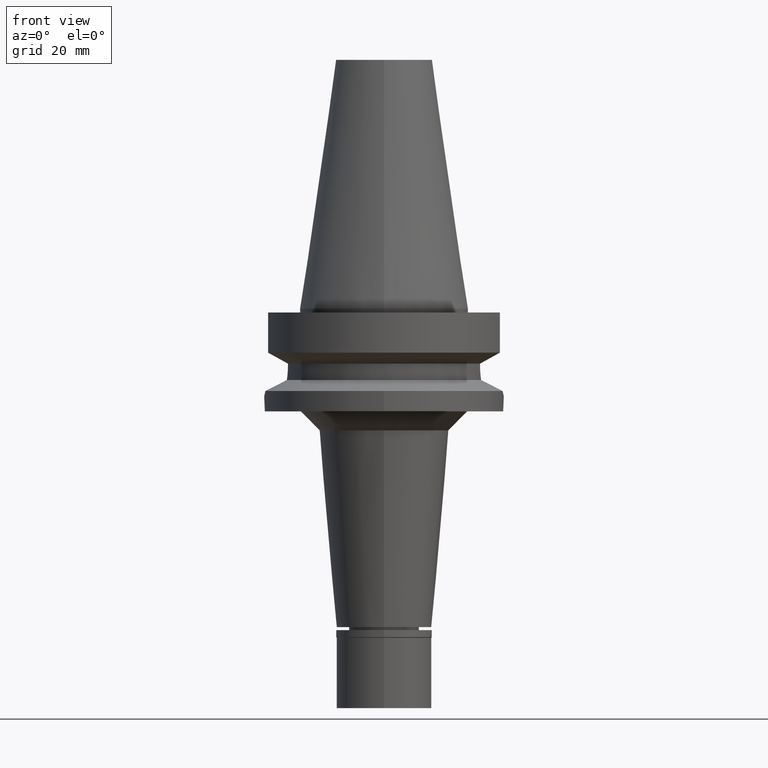
[diagram: clean part render]
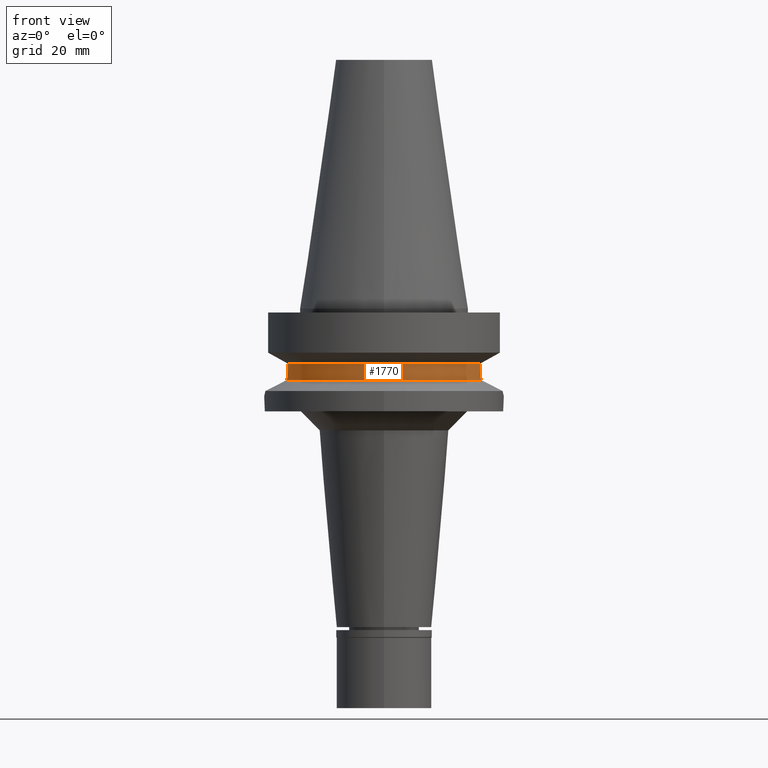
[diagram: same view with one face highlighted and labeled with its STEP entity id]
A machine part, front view. The second image highlights one B-rep face of the part: STEP entity #1770.
In plain terms, the highlighted cylindrical surface (partial cylindrical patch) has radius 26.5 mm, axis along (0, 0, -1).
Its self-contained STEP definition (entity closure, byte-faithful):
#80 = VECTOR ( 'NONE', #1501, 1000.000000000000114 ) ;
#113 = CARTESIAN_POINT ( 'NONE',  ( 25.31202572170774800, -7.845729406580115750, -16.75279821057748464 ) ) ;
#128 = AXIS2_PLACEMENT_3D ( 'NONE', #1649, #158, #3082 ) ;
#158 = DIRECTION ( 'NONE',  ( 0.0000000000000000000, 0.0000000000000000000, -1.000000000000000000 ) ) ;
#196 = CARTESIAN_POINT ( 'NONE',  ( -25.32419709970849908, -7.806318959900162113, -16.91578803901743555 ) ) ;
#235 = DIRECTION ( 'NONE',  ( 0.0000000000000000000, 0.0000000000000000000, -1.000000000000000000 ) ) ;
#243 = B_SPLINE_CURVE_WITH_KNOTS ( 'NONE', 3,
 ( #479, #449, #1691, #2368, #2177, #2392, #2904, #905, #2416, #2608, #196, #672, #2890, #411 ),
 .UNSPECIFIED., .F., .F.,
 ( 4, 2, 2, 1, 1, 2, 2, 4 ),
 ( 0.0000000000000000000, 0.2499999999999918954, 0.3749999999999866218, 0.4374999999999840128, 0.4687499999999841238, 0.4843749999999829581, 0.4999999999999817923, 1.000000000000000000 ),
 .UNSPECIFIED. ) ;
#292 = ORIENTED_EDGE ( 'NONE', *, *, #2343, .F. ) ;
#299 = EDGE_CURVE ( 'NONE', #2171, #1207, #2859, .T. ) ;
#371 = AXIS2_PLACEMENT_3D ( 'NONE', #1219, #235, #2197 ) ;
#400 = EDGE_CURVE ( 'NONE', #2171, #2512, #243, .T. ) ;
#410 = DIRECTION ( 'NONE',  ( 0.0000000000000000000, 0.0000000000000000000, 1.000000000000000000 ) ) ;
#411 = CARTESIAN_POINT ( 'NONE',  ( -25.24772266958000344, -8.050000000000000711, -14.94999999999999929 ) ) ;
#449 = CARTESIAN_POINT ( 'NONE',  ( -25.48482038766597313, -7.266679548433753411, -18.43222872448827943 ) ) ;
#459 = CARTESIAN_POINT ( 'NONE',  ( -25.53175183775000079, -7.097862220092999941, -18.74774300138999905 ) ) ;
#479 = CARTESIAN_POINT ( 'NONE',  ( -25.53175183775000079, -7.097862220092999941, -18.74774300138999905 ) ) ;
#553 = CARTESIAN_POINT ( 'NONE',  ( -25.24772413162000007, -8.049995414510000558, -14.45229203773999949 ) ) ;
#625 = CARTESIAN_POINT ( 'NONE',  ( 25.32118155423751560, -7.816096717212906775, -16.87652453452377443 ) ) ;
#647 = CARTESIAN_POINT ( 'NONE',  ( 25.31950905643225269, -7.821515286679913359, -16.85442525727320273 ) ) ;
#672 = CARTESIAN_POINT ( 'NONE',  ( -25.27269391207093463, -7.973288729732009195, -16.24537813257525443 ) ) ;
#778 = ORIENTED_EDGE ( 'NONE', *, *, #299, .T. ) ;
#822 = VERTEX_POINT ( 'NONE', #1414 ) ;
#905 = CARTESIAN_POINT ( 'NONE',  ( -25.33293017119236268, -7.777974374871673646, -17.02562462713737190 ) ) ;
#977 = VERTEX_POINT ( 'NONE', #553 ) ;
#1044 = EDGE_CURVE ( 'NONE', #822, #1207, #1917, .T. ) ;
#1068 = LINE ( 'NONE', #2717, #80 ) ;
#1101 = EDGE_CURVE ( 'NONE', #2659, #977, #3129, .T. ) ;
#1180 = FACE_OUTER_BOUND ( 'NONE', #1204, .T. ) ;
#1204 = EDGE_LOOP ( 'NONE', ( #2867, #778, #2632, #1866, #3063, #292 ) ) ;
#1207 = VERTEX_POINT ( 'NONE', #2505 ) ;
#1219 = CARTESIAN_POINT ( 'NONE',  ( 0.0000000000000000000, 1.065333950388000029E-14, -14.45225699861000024 ) ) ;
#1268 = EDGE_CURVE ( 'NONE', #2659, #822, #2285, .T. ) ;
#1329 = CARTESIAN_POINT ( 'NONE',  ( 0.0000000000000000000, 0.0000000000000000000, -18.74774300138999905 ) ) ;
#1376 = CARTESIAN_POINT ( 'NONE',  ( 25.25396284446427231, -8.030907492774099765, -15.59360398733923248 ) ) ;
#1398 = CYLINDRICAL_SURFACE ( 'NONE', #128, 26.50000000000000000 ) ;
#1414 = CARTESIAN_POINT ( 'NONE',  ( 25.24772266958000344, -8.050000000000000711, -14.94999999999999929 ) ) ;
#1448 = CARTESIAN_POINT ( 'NONE',  ( 25.24772266958000344, -8.050000000000000711, -14.45225699861000024 ) ) ;
#1493 = AXIS2_PLACEMENT_3D ( 'NONE', #1329, #410, #2107 ) ;
#1501 = DIRECTION ( 'NONE',  ( -2.937545361456128880E-06, 9.213214575417397697E-06, 0.9999999999532437345 ) ) ;
#1549 = CARTESIAN_POINT ( 'NONE',  ( 25.31648647172267630, -7.831300037042746354, -16.81378020971410336 ) ) ;
#1572 = CARTESIAN_POINT ( 'NONE',  ( 25.24772216415000159, -8.050001585223000689, -14.45224488610999991 ) ) ;
#1598 = CARTESIAN_POINT ( 'NONE',  ( 25.43786330456363487, -7.435589081430040714, -18.11654211998952135 ) ) ;
#1649 = CARTESIAN_POINT ( 'NONE',  ( 0.0000000000000000000, 2.126109307999999799E-14, 73.60999999999999943 ) ) ;
#1691 = CARTESIAN_POINT ( 'NONE',  ( -25.44392837589919409, -7.408239565059833609, -18.11709494172741586 ) ) ;
#1770 = ADVANCED_FACE ( 'NONE', ( #1180 ), #1398, .T. ) ;
#1801 = CARTESIAN_POINT ( 'NONE',  ( 25.28048358772242210, -7.947040743794914874, -16.24400980664077920 ) ) ;
#1866 = ORIENTED_EDGE ( 'NONE', *, *, #1268, .F. ) ;
#1917 = B_SPLINE_CURVE_WITH_KNOTS ( 'NONE', 3,
 ( #2595, #2295, #1376, #2310, #1801, #2577, #2808, #113, #1549, #647, #625, #2533, #1598, #2326 ),
 .UNSPECIFIED., .F., .F.,
 ( 4, 2, 2, 1, 1, 2, 2, 4 ),
 ( 0.0000000000000000000, 0.2500000000000145439, 0.3750000000000218159, 0.4375000000000255351, 0.4687500000000285882, 0.4843750000000303091, 0.5000000000000319744, 1.000000000000000000 ),
 .UNSPECIFIED. ) ;
#2107 = DIRECTION ( 'NONE',  ( -0.9634623335000935818, -0.2678438573619981722, 0.0000000000000000000 ) ) ;
#2171 = VERTEX_POINT ( 'NONE', #459 ) ;
#2177 = CARTESIAN_POINT ( 'NONE',  ( -25.37573308857945165, -7.637710303739479123, -17.49818662950806925 ) ) ;
#2197 = DIRECTION ( 'NONE',  ( 0.9527442516822307583, -0.3037735849057093818, 0.0000000000000000000 ) ) ;
#2285 = LINE ( 'NONE', #1572, #2924 ) ;
#2295 = CARTESIAN_POINT ( 'NONE',  ( 25.24772266958000344, -8.050000000000000711, -15.26991324108737302 ) ) ;
#2310 = CARTESIAN_POINT ( 'NONE',  ( 25.27268336911707891, -7.971811480182248388, -16.08115959834941222 ) ) ;
#2326 = CARTESIAN_POINT ( 'NONE',  ( 25.53175183775000079, -7.097862220092999941, -18.74774300138999905 ) ) ;
#2343 = EDGE_CURVE ( 'NONE', #2512, #977, #1068, .T. ) ;
#2368 = CARTESIAN_POINT ( 'NONE',  ( -25.39164951572489670, -7.584807667336940895, -17.65197957159466569 ) ) ;
#2392 = CARTESIAN_POINT ( 'NONE',  ( -25.35412323723022965, -7.708830947932249877, -17.27007949472958614 ) ) ;
#2416 = CARTESIAN_POINT ( 'NONE',  ( -25.32844777903621036, -7.792527725354057466, -16.96974754110875239 ) ) ;
#2505 = CARTESIAN_POINT ( 'NONE',  ( 25.53175183775000079, -7.097862220092999941, -18.74774300138999905 ) ) ;
#2512 = VERTEX_POINT ( 'NONE', #3076 ) ;
#2533 = CARTESIAN_POINT ( 'NONE',  ( 25.36814761471070767, -7.663830712965410186, -17.48803584493431984 ) ) ;
#2577 = CARTESIAN_POINT ( 'NONE',  ( 25.29452398121201284, -7.902090651792915033, -16.48828405102948125 ) ) ;
#2595 = CARTESIAN_POINT ( 'NONE',  ( 25.24772266958000344, -8.050000000000000711, -14.94999999999999929 ) ) ;
#2608 = CARTESIAN_POINT ( 'NONE',  ( -25.32550670071061560, -7.802071535306287942, -16.93256103012994629 ) ) ;
#2632 = ORIENTED_EDGE ( 'NONE', *, *, #1044, .F. ) ;
#2659 = VERTEX_POINT ( 'NONE', #1448 ) ;
#2717 = CARTESIAN_POINT ( 'NONE',  ( -25.24772266958000344, -8.050000000000000711, -14.94999999999999929 ) ) ;
#2744 = DIRECTION ( 'NONE',  ( 1.015425427460012015E-06, 3.184744653676040566E-06, -0.9999999999944131357 ) ) ;
#2808 = CARTESIAN_POINT ( 'NONE',  ( 25.30212919435223995, -7.877667573970332349, -16.61042047323947202 ) ) ;
#2859 = CIRCLE ( 'NONE', #1493, 26.49999999999998224 ) ;
#2867 = ORIENTED_EDGE ( 'NONE', *, *, #400, .F. ) ;
#2890 = CARTESIAN_POINT ( 'NONE',  ( -25.24772266958000344, -8.049999999999982947, -15.58999736273348802 ) ) ;
#2904 = CARTESIAN_POINT ( 'NONE',  ( -25.34388450889785815, -7.742333382928198837, -17.15666984720020238 ) ) ;
#2924 = VECTOR ( 'NONE', #2744, 1000.000000000000114 ) ;
#3063 = ORIENTED_EDGE ( 'NONE', *, *, #1101, .T. ) ;
#3076 = CARTESIAN_POINT ( 'NONE',  ( -25.24772266958000344, -8.050000000000000711, -14.94999999999999929 ) ) ;
#3082 = DIRECTION ( 'NONE',  ( 0.0000000000000000000, -1.000000000000000000, 0.0000000000000000000 ) ) ;
#3129 = CIRCLE ( 'NONE', #371, 26.50000000000000711 ) ;